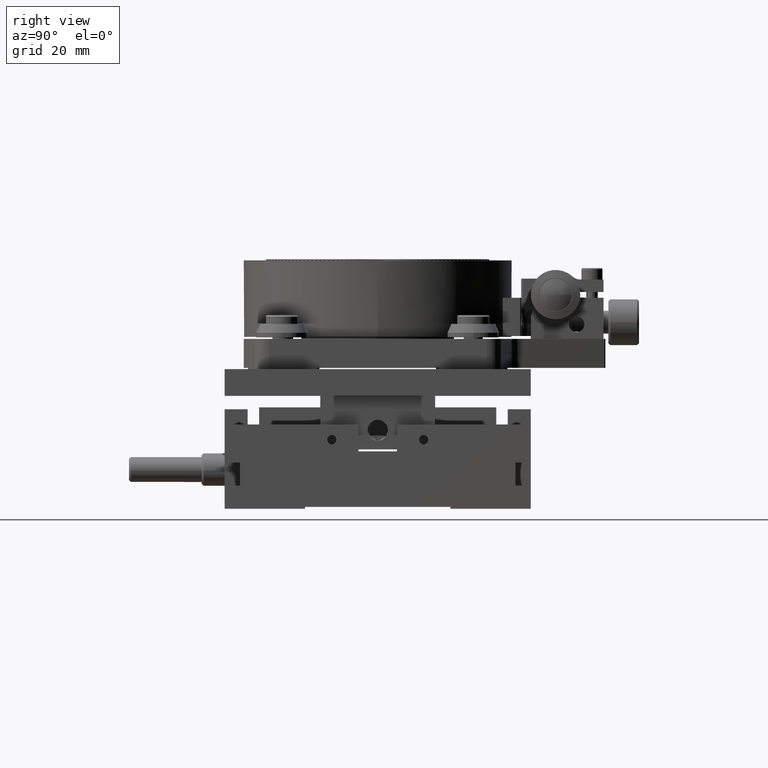
[diagram: clean part render]
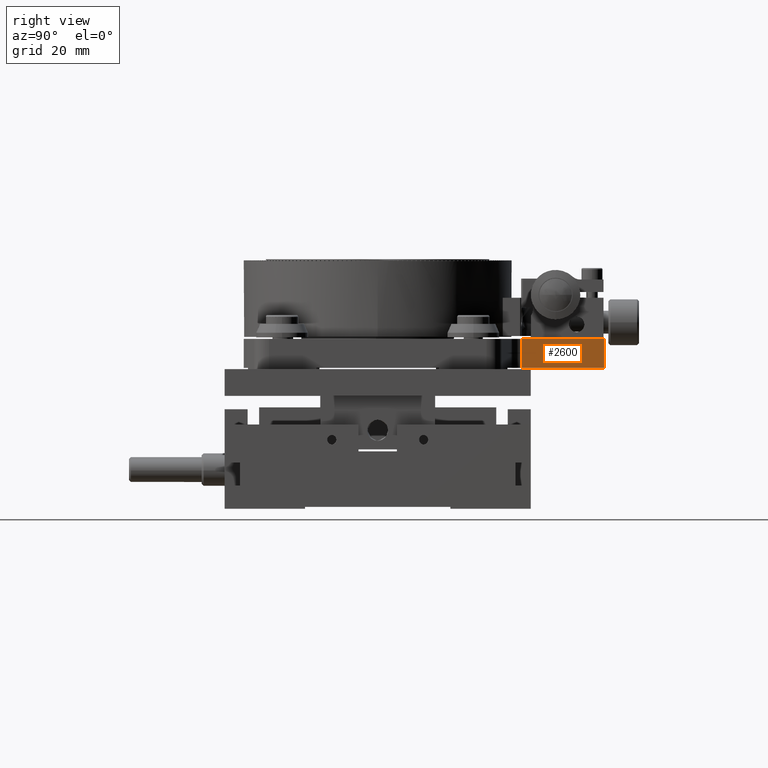
[diagram: same view with one face highlighted and labeled with its STEP entity id]
A machine part, right view. The second image highlights one B-rep face of the part: STEP entity #2600.
In plain terms, the highlighted face is a freeform B-spline surface patch.
Its self-contained STEP definition (entity closure, byte-faithful):
#2600=ADVANCED_FACE('',(#5797),#103396,.T.);
#5797=FACE_OUTER_BOUND('',#8838,.T.);
#8838=EDGE_LOOP('',(#21430,#21431,#21432,#21433));
#21430=ORIENTED_EDGE('',*,*,#90159,.T.);
#21431=ORIENTED_EDGE('',*,*,#90157,.F.);
#21432=ORIENTED_EDGE('',*,*,#90160,.T.);
#21433=ORIENTED_EDGE('',*,*,#90161,.T.);
#40866=B_SPLINE_CURVE_WITH_KNOTS('',1,(#171634,#171635),.UNSPECIFIED.,.F.,
 .F.,(2,2),(0.,7.6),.UNSPECIFIED.);
#40867=B_SPLINE_CURVE_WITH_KNOTS('',1,(#171636,#171637),.UNSPECIFIED.,.F.,
 .F.,(2,2),(0.,7.6),.UNSPECIFIED.);
#40869=B_SPLINE_CURVE_WITH_KNOTS('',1,(#171643,#171644),.UNSPECIFIED.,.F.,
 .F.,(2,2),(-22.1381422703586,0.),.UNSPECIFIED.);
#40870=B_SPLINE_CURVE_WITH_KNOTS('',1,(#171645,#171646),.UNSPECIFIED.,.F.,
 .F.,(2,2),(-22.1381422703586,0.),.UNSPECIFIED.);
#40871=B_SPLINE_CURVE_WITH_KNOTS('',1,(#171647,#171648),.UNSPECIFIED.,.F.,
 .F.,(2,2),(0.,7.6),.UNSPECIFIED.);
#40872=B_SPLINE_CURVE_WITH_KNOTS('',1,(#171649,#171650),.UNSPECIFIED.,.F.,
 .F.,(2,2),(-22.1381422703586,0.),.UNSPECIFIED.);
#40873=B_SPLINE_CURVE_WITH_KNOTS('',1,(#171651,#171652),.UNSPECIFIED.,.F.,
 .F.,(2,2),(-22.1381422703586,0.),.UNSPECIFIED.);
#40874=B_SPLINE_CURVE_WITH_KNOTS('',1,(#171653,#171654),.UNSPECIFIED.,.F.,
 .F.,(2,2),(-7.6,0.),.UNSPECIFIED.);
#40875=B_SPLINE_CURVE_WITH_KNOTS('',1,(#171655,#171656),.UNSPECIFIED.,.F.,
 .F.,(2,2),(-7.6,0.),.UNSPECIFIED.);
#40879=B_SPLINE_CURVE_WITH_KNOTS('',1,(#171669,#171670),.UNSPECIFIED.,.F.,
 .F.,(2,2),(-7.6,0.),.UNSPECIFIED.);
#40962=B_SPLINE_CURVE_WITH_KNOTS('',1,(#172004,#172005),.UNSPECIFIED.,.F.,
 .F.,(2,2),(-22.1381422703586,0.),.UNSPECIFIED.);
#41029=B_SPLINE_CURVE_WITH_KNOTS('',1,(#172335,#172336),.UNSPECIFIED.,.F.,
 .F.,(2,2),(-22.1381422703586,0.),.UNSPECIFIED.);
#56833=PCURVE('',#101242,#72426);
#56835=PCURVE('',#103396,#72428);
#56836=PCURVE('',#103396,#72429);
#56837=PCURVE('',#103396,#72430);
#56838=PCURVE('',#103396,#72431);
#56842=PCURVE('',#101243,#72435);
#56925=PCURVE('',#103401,#72518);
#57014=PCURVE('',#103404,#72607);
#72426=DEFINITIONAL_REPRESENTATION('',(#40867),#197026);
#72428=DEFINITIONAL_REPRESENTATION('',(#40870),#197026);
#72429=DEFINITIONAL_REPRESENTATION('',(#40871),#197026);
#72430=DEFINITIONAL_REPRESENTATION('',(#40873),#197026);
#72431=DEFINITIONAL_REPRESENTATION('',(#40875),#197026);
#72435=DEFINITIONAL_REPRESENTATION('',(#40879),#197026);
#72518=DEFINITIONAL_REPRESENTATION('',(#40962),#197026);
#72607=DEFINITIONAL_REPRESENTATION('',(#41029),#197026);
#82299=SURFACE_CURVE('',#40866,(#56833,#56836),.PCURVE_S1.);
#82301=SURFACE_CURVE('',#40869,(#56835,#56925),.PCURVE_S1.);
#82302=SURFACE_CURVE('',#40872,(#56837,#57014),.PCURVE_S1.);
#82303=SURFACE_CURVE('',#40874,(#56838,#56842),.PCURVE_S1.);
#90157=EDGE_CURVE('',#99683,#99682,#82299,.T.);
#90159=EDGE_CURVE('',#99684,#99682,#82301,.T.);
#90160=EDGE_CURVE('',#99683,#99685,#82302,.T.);
#90161=EDGE_CURVE('',#99685,#99684,#82303,.T.);
#99682=VERTEX_POINT('',#165128);
#99683=VERTEX_POINT('',#165129);
#99684=VERTEX_POINT('',#165130);
#99685=VERTEX_POINT('',#165131);
#101242=(
BOUNDED_SURFACE()
B_SPLINE_SURFACE(1,2,((#162889,#162890,#162891,#162892,#162893,#162894,
#162895,#162896,#162897),(#162898,#162899,#162900,#162901,#162902,#162903,
#162904,#162905,#162906)),.UNSPECIFIED.,.F.,.F.,.F.)
B_SPLINE_SURFACE_WITH_KNOTS((2,2),(3,2,2,2,3),(0.,9.36000000000001),(0.,
1.5707963267949,3.14159265358979,4.71238898038469,6.28318530717959),
 .UNSPECIFIED.)
GEOMETRIC_REPRESENTATION_ITEM()
RATIONAL_B_SPLINE_SURFACE(((1.,0.707106781186548,1.,0.707106781186548,1.,
0.707106781186548,1.,0.707106781186548,1.),(1.,0.707106781186548,1.,0.707106781186548,
1.,0.707106781186548,1.,0.707106781186548,1.)))
REPRESENTATION_ITEM('')
SURFACE()
);
#101243=(
BOUNDED_SURFACE()
B_SPLINE_SURFACE(2,1,((#162911,#162912),(#162913,#162914),(#162915,#162916),
(#162917,#162918),(#162919,#162920),(#162921,#162922),(#162923,#162924),
(#162925,#162926),(#162927,#162928)),.UNSPECIFIED.,.T.,.F.,.F.)
B_SPLINE_SURFACE_WITH_KNOTS((3,2,2,2,3),(2,2),(0.,1.5707963267949,3.14159265358979,
4.71238898038469,6.28318530717959),(0.,9.36000000000001),.UNSPECIFIED.)
GEOMETRIC_REPRESENTATION_ITEM()
RATIONAL_B_SPLINE_SURFACE(((1.,1.),(0.707106781186548,0.707106781186548),
(1.,1.),(0.707106781186548,0.707106781186548),(1.,1.),(0.707106781186548,
0.707106781186548),(1.,1.),(0.707106781186548,0.707106781186548),(1.,1.)))
REPRESENTATION_ITEM('')
SURFACE()
);
#103396=B_SPLINE_SURFACE_WITH_KNOTS('',1,1,((#162907,#162908),(#162909,
#162910)),.UNSPECIFIED.,.F.,.F.,.F.,(2,2),(2,2),(-0.880000000000006,8.48),
(0.177868901505365,27.0375783950697),.UNSPECIFIED.);
#103401=B_SPLINE_SURFACE_WITH_KNOTS('',1,1,((#163053,#163054),(#163055,
#163056)),.UNSPECIFIED.,.F.,.F.,.F.,(2,2),(2,2),(-54.1199999999997,54.12),
(-69.0700000000002,44.57),.UNSPECIFIED.);
#103404=B_SPLINE_SURFACE_WITH_KNOTS('',1,1,((#163101,#163102),(#163103,
#163104)),.UNSPECIFIED.,.F.,.F.,.F.,(2,2),(2,2),(-69.0700000000002,44.57),
(-53.9699633736047,52.4695971096554),.UNSPECIFIED.);
#162889=CARTESIAN_POINT('',(84.505886700238,-22.2719402236173,44.78));
#162890=CARTESIAN_POINT('',(84.505886700238,-18.2719402236173,44.78));
#162891=CARTESIAN_POINT('',(88.505886700238,-18.2719402236173,44.78));
#162892=CARTESIAN_POINT('',(92.505886700238,-18.2719402236173,44.78));
#162893=CARTESIAN_POINT('',(92.505886700238,-22.2719402236173,44.78));
#162894=CARTESIAN_POINT('',(92.505886700238,-26.2719402236173,44.78));
#162895=CARTESIAN_POINT('',(88.505886700238,-26.2719402236173,44.78));
#162896=CARTESIAN_POINT('',(84.505886700238,-26.2719402236173,44.78));
#162897=CARTESIAN_POINT('',(84.505886700238,-22.2719402236173,44.78));
#162898=CARTESIAN_POINT('',(84.505886700238,-22.2719402236173,35.42));
#162899=CARTESIAN_POINT('',(84.505886700238,-18.2719402236173,35.42));
#162900=CARTESIAN_POINT('',(88.505886700238,-18.2719402236173,35.42));
#162901=CARTESIAN_POINT('',(92.505886700238,-18.2719402236173,35.42));
#162902=CARTESIAN_POINT('',(92.505886700238,-22.2719402236173,35.42));
#162903=CARTESIAN_POINT('',(92.505886700238,-26.2719402236173,35.42));
#162904=CARTESIAN_POINT('',(88.505886700238,-26.2719402236173,35.42));
#162905=CARTESIAN_POINT('',(84.505886700238,-26.2719402236173,35.42));
#162906=CARTESIAN_POINT('',(84.505886700238,-22.2719402236173,35.42));
#162907=CARTESIAN_POINT('',(85.2531991551304,-25.5875582647545,44.78));
#162908=CARTESIAN_POINT('',(78.3013947922751,0.356928821701018,44.78));
#162909=CARTESIAN_POINT('',(85.2531991551304,-25.5875582647545,35.42));
#162910=CARTESIAN_POINT('',(78.3013947922751,0.356928821701018,35.42));
#162911=CARTESIAN_POINT('',(77.9294476391793,-2.05282256157744,44.78));
#162912=CARTESIAN_POINT('',(77.9294476391793,-2.05282256157744,35.42));
#162913=CARTESIAN_POINT('',(77.9294476391793,-1.55282256157744,44.78));
#162914=CARTESIAN_POINT('',(77.9294476391793,-1.55282256157744,35.42));
#162915=CARTESIAN_POINT('',(78.4294476391793,-1.55282256157744,44.78));
#162916=CARTESIAN_POINT('',(78.4294476391793,-1.55282256157744,35.42));
#162917=CARTESIAN_POINT('',(78.9294476391793,-1.55282256157744,44.78));
#162918=CARTESIAN_POINT('',(78.9294476391793,-1.55282256157744,35.42));
#162919=CARTESIAN_POINT('',(78.9294476391793,-2.05282256157744,44.78));
#162920=CARTESIAN_POINT('',(78.9294476391793,-2.05282256157744,35.42));
#162921=CARTESIAN_POINT('',(78.9294476391793,-2.55282256157744,44.78));
#162922=CARTESIAN_POINT('',(78.9294476391793,-2.55282256157744,35.42));
#162923=CARTESIAN_POINT('',(78.4294476391793,-2.55282256157744,44.78));
#162924=CARTESIAN_POINT('',(78.4294476391793,-2.55282256157744,35.42));
#162925=CARTESIAN_POINT('',(77.9294476391793,-2.55282256157744,44.78));
#162926=CARTESIAN_POINT('',(77.9294476391793,-2.55282256157744,35.42));
#162927=CARTESIAN_POINT('',(77.9294476391793,-2.05282256157744,44.78));
#162928=CARTESIAN_POINT('',(77.9294476391793,-2.05282256157744,35.42));
#163053=CARTESIAN_POINT('',(114.119999999999,8.01717743842259,43.9));
#163054=CARTESIAN_POINT('',(114.119999999999,-105.622822561578,43.9));
#163055=CARTESIAN_POINT('',(5.87999999999931,8.01717743842257,43.9));
#163056=CARTESIAN_POINT('',(5.87999999999933,-105.622822561578,43.9));
#163101=CARTESIAN_POINT('',(113.969963373604,8.01717743842259,36.3));
#163102=CARTESIAN_POINT('',(7.53040289034388,8.01717743842257,36.3));
#163103=CARTESIAN_POINT('',(113.969963373604,-105.622822561578,36.3));
#163104=CARTESIAN_POINT('',(7.53040289034389,-105.622822561578,36.3));
#165128=CARTESIAN_POINT('',(84.6421833950817,-23.3072164040273,43.9));
#165129=CARTESIAN_POINT('',(84.6421833950817,-23.3072164040273,36.3));
#165130=CARTESIAN_POINT('',(78.9124105523238,-1.92341303902617,43.9));
#165131=CARTESIAN_POINT('',(78.9124105523238,-1.92341303902617,36.3));
#171634=CARTESIAN_POINT('',(84.6421833950817,-23.3072164040273,36.3));
#171635=CARTESIAN_POINT('',(84.6421833950817,-23.3072164040273,43.9));
#171636=CARTESIAN_POINT('',(8.48,6.00585067123778));
#171637=CARTESIAN_POINT('',(0.880000000000002,6.00585067123777));
#171643=CARTESIAN_POINT('',(78.9124105523238,-1.92341303902617,43.9));
#171644=CARTESIAN_POINT('',(84.6421833950817,-23.3072164040273,43.9));
#171645=CARTESIAN_POINT('',(-4.08685681958108E-15,24.6767947834669));
#171646=CARTESIAN_POINT('',(-4.20439908293688E-16,2.53865251310822));
#171647=CARTESIAN_POINT('',(7.6,2.53865251310824));
#171648=CARTESIAN_POINT('',(-4.20439908293688E-16,2.53865251310822));
#171649=CARTESIAN_POINT('',(84.6421833950817,-23.3072164040273,36.3));
#171650=CARTESIAN_POINT('',(78.9124105523238,-1.92341303902617,36.3));
#171651=CARTESIAN_POINT('',(7.6,2.53865251310824));
#171652=CARTESIAN_POINT('',(7.6,24.6767947834669));
#171653=CARTESIAN_POINT('',(78.9124105523238,-1.92341303902617,36.3));
#171654=CARTESIAN_POINT('',(78.9124105523238,-1.92341303902617,43.9));
#171655=CARTESIAN_POINT('',(7.6,24.6767947834669));
#171656=CARTESIAN_POINT('',(-4.08685681958108E-15,24.6767947834669));
#171669=CARTESIAN_POINT('',(2.86425801764795,8.48));
#171670=CARTESIAN_POINT('',(2.86425801764795,0.880000000000002));
#172004=CARTESIAN_POINT('',(-18.9124105523245,-59.1294095225514));
#172005=CARTESIAN_POINT('',(-24.6421833950825,-37.7456061575503));
#172335=CARTESIAN_POINT('',(-37.7456061575503,-24.6421833950824));
#172336=CARTESIAN_POINT('',(-59.1294095225514,-18.9124105523245));
#197026=(
GEOMETRIC_REPRESENTATION_CONTEXT(2)
PARAMETRIC_REPRESENTATION_CONTEXT()
REPRESENTATION_CONTEXT('pspace','')
);